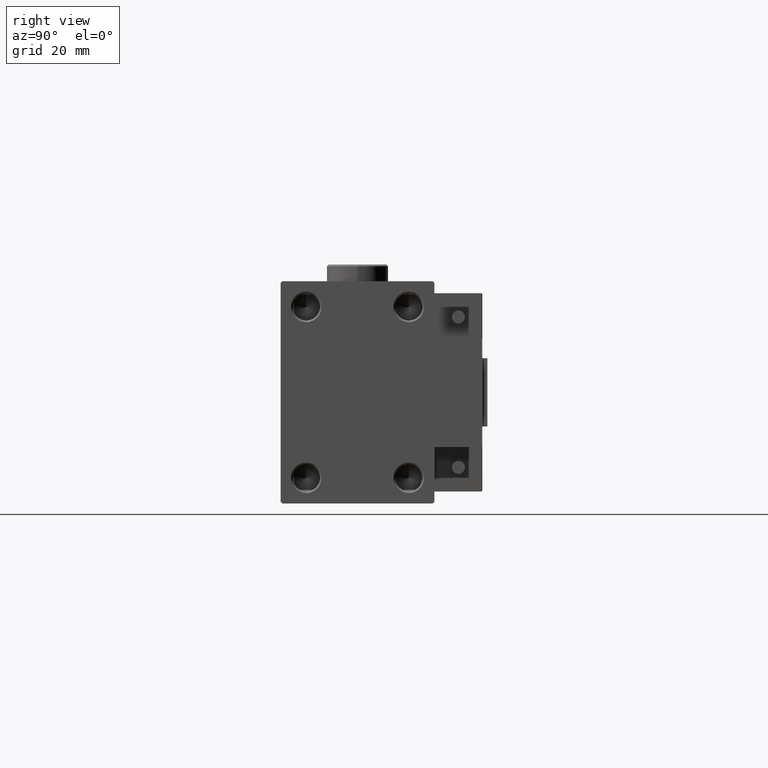
[diagram: clean part render]
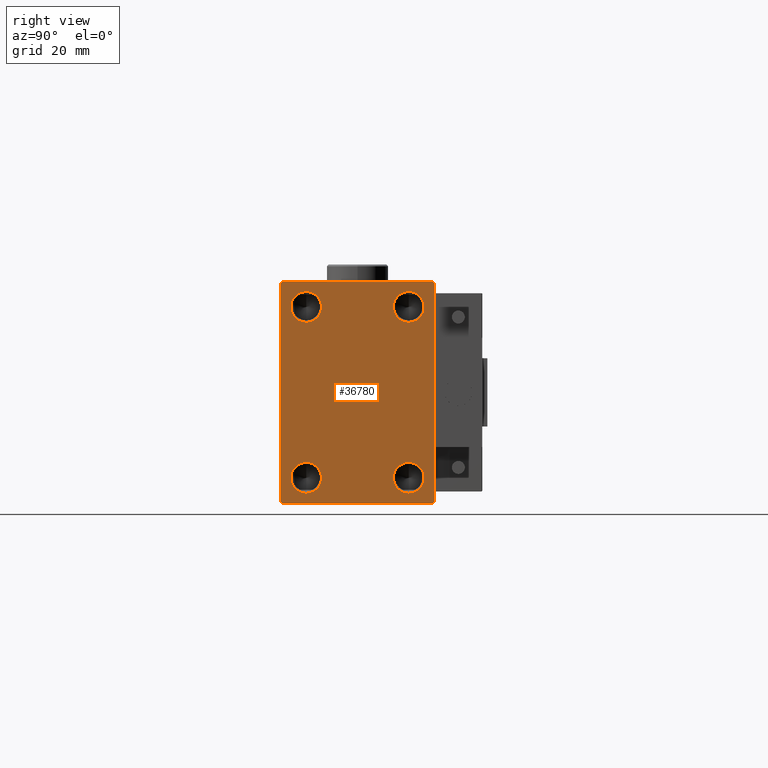
[diagram: same view with one face highlighted and labeled with its STEP entity id]
A machine part, right view. The second image highlights one B-rep face of the part: STEP entity #36780.
In plain terms, the highlighted planar face has unit normal (1, 0, 0).
Its self-contained STEP definition (entity closure, byte-faithful):
#361 = VECTOR ( 'NONE', #15699, 1000.000000000000114 ) ;
#390 = EDGE_CURVE ( 'NONE', #19330, #53029, #1608, .T. ) ;
#391 = CARTESIAN_POINT ( 'NONE',  ( 75.00000000000000000, -22.49999999999999289, -32.50000000000000711 ) ) ;
#492 = LINE ( 'NONE', #9712, #34011 ) ;
#602 = CARTESIAN_POINT ( 'NONE',  ( 75.00000000000000000, -15.00000000000000000, 29.49999999999998579 ) ) ;
#916 = CIRCLE ( 'NONE', #50083, 4.499999999999990230 ) ;
#1169 = FACE_OUTER_BOUND ( 'NONE', #13412, .T. ) ;
#1608 = CIRCLE ( 'NONE', #32893, 4.500000000000017764 ) ;
#2290 = LINE ( 'NONE', #44859, #361 ) ;
#2664 = VECTOR ( 'NONE', #12709, 1000.000000000000000 ) ;
#2684 = VERTEX_POINT ( 'NONE', #24225 ) ;
#2790 = CARTESIAN_POINT ( 'NONE',  ( 75.00000000000000000, -22.49999999999999289, 31.99999999999998579 ) ) ;
#3027 = ORIENTED_EDGE ( 'NONE', *, *, #45269, .T. ) ;
#3507 = DIRECTION ( 'NONE',  ( 1.000000000000000000, -0.000000000000000000, -0.000000000000000000 ) ) ;
#4743 = ORIENTED_EDGE ( 'NONE', *, *, #18627, .F. ) ;
#5506 = DIRECTION ( 'NONE',  ( 0.000000000000000000, 0.000000000000000000, -1.000000000000000000 ) ) ;
#6757 = CIRCLE ( 'NONE', #38046, 4.500000000000017764 ) ;
#7124 = CARTESIAN_POINT ( 'NONE',  ( 75.00000000000000000, 22.00000000000000000, 32.49999999999999289 ) ) ;
#7431 = CARTESIAN_POINT ( 'NONE',  ( 75.00000000000000000, -15.00000000000000000, -25.00000000000000000 ) ) ;
#7772 = VERTEX_POINT ( 'NONE', #7861 ) ;
#7838 = ORIENTED_EDGE ( 'NONE', *, *, #53928, .T. ) ;
#7861 = CARTESIAN_POINT ( 'NONE',  ( 75.00000000000000000, -22.49999999999999289, -32.00000000000001421 ) ) ;
#8219 = VECTOR ( 'NONE', #10863, 1000.000000000000000 ) ;
#8536 = DIRECTION ( 'NONE',  ( 0.000000000000000000, 0.000000000000000000, -1.000000000000000000 ) ) ;
#9560 = CARTESIAN_POINT ( 'NONE',  ( 75.00000000000000000, 0.000000000000000000, 0.000000000000000000 ) ) ;
#9712 = CARTESIAN_POINT ( 'NONE',  ( 75.00000000000000000, -22.49999999999999289, 32.49999999999998579 ) ) ;
#9832 = ORIENTED_EDGE ( 'NONE', *, *, #51158, .F. ) ;
#10160 = VERTEX_POINT ( 'NONE', #31434 ) ;
#10567 = CARTESIAN_POINT ( 'NONE',  ( 75.00000000000000000, 22.00000000000000711, -32.50000000000000711 ) ) ;
#10725 = ORIENTED_EDGE ( 'NONE', *, *, #40766, .T. ) ;
#10804 = EDGE_CURVE ( 'NONE', #32981, #10160, #16984, .T. ) ;
#10863 = DIRECTION ( 'NONE',  ( -0.000000000000000000, 0.7071067811865378028, 0.7071067811865573427 ) ) ;
#11098 = DIRECTION ( 'NONE',  ( 1.000000000000000000, -0.000000000000000000, -0.000000000000000000 ) ) ;
#11780 = LINE ( 'NONE', #16519, #25911 ) ;
#11822 = VERTEX_POINT ( 'NONE', #10567 ) ;
#12709 = DIRECTION ( 'NONE',  ( 0.000000000000000000, 1.000000000000000000, 0.000000000000000000 ) ) ;
#13326 = AXIS2_PLACEMENT_3D ( 'NONE', #9560, #30584, #13747 ) ;
#13412 = EDGE_LOOP ( 'NONE', ( #38812, #39162, #20581, #43471, #10725, #3027, #7838, #18796 ) ) ;
#13475 = PLANE ( 'NONE',  #13326 ) ;
#13626 = DIRECTION ( 'NONE',  ( 0.000000000000000000, 0.000000000000000000, -1.000000000000000000 ) ) ;
#13641 = LINE ( 'NONE', #31312, #37679 ) ;
#13721 = CARTESIAN_POINT ( 'NONE',  ( 75.00000000000000000, 22.50000000000000711, -32.00000000000000711 ) ) ;
#13747 = DIRECTION ( 'NONE',  ( 0.000000000000000000, 0.000000000000000000, -1.000000000000000000 ) ) ;
#14695 = CIRCLE ( 'NONE', #20976, 4.500000000000017764 ) ;
#15699 = DIRECTION ( 'NONE',  ( 0.000000000000000000, -0.7071067811865474617, -0.7071067811865474617 ) ) ;
#15889 = CARTESIAN_POINT ( 'NONE',  ( 75.00000000000000000, 22.50000000000000711, -32.50000000000000711 ) ) ;
#16519 = CARTESIAN_POINT ( 'NONE',  ( 75.00000000000000000, 27.24999999999969447, 27.25000000000044764 ) ) ;
#16857 = ORIENTED_EDGE ( 'NONE', *, *, #19822, .F. ) ;
#16984 = CIRCLE ( 'NONE', #24152, 4.499999999999990230 ) ;
#18321 = DIRECTION ( 'NONE',  ( 0.000000000000000000, 0.000000000000000000, -1.000000000000000000 ) ) ;
#18627 = EDGE_CURVE ( 'NONE', #35052, #23536, #51324, .T. ) ;
#18796 = ORIENTED_EDGE ( 'NONE', *, *, #37018, .T. ) ;
#18965 = EDGE_CURVE ( 'NONE', #23536, #35052, #22739, .T. ) ;
#18968 = DIRECTION ( 'NONE',  ( 0.000000000000000000, 0.000000000000000000, -1.000000000000000000 ) ) ;
#19323 = EDGE_CURVE ( 'NONE', #20362, #40078, #2290, .T. ) ;
#19330 = VERTEX_POINT ( 'NONE', #36181 ) ;
#19822 = EDGE_CURVE ( 'NONE', #20641, #34281, #14695, .T. ) ;
#20322 = DIRECTION ( 'NONE',  ( 1.000000000000000000, -0.000000000000000000, -0.000000000000000000 ) ) ;
#20362 = VERTEX_POINT ( 'NONE', #33911 ) ;
#20581 = ORIENTED_EDGE ( 'NONE', *, *, #38264, .T. ) ;
#20641 = VERTEX_POINT ( 'NONE', #20957 ) ;
#20861 = VERTEX_POINT ( 'NONE', #7124 ) ;
#20957 = CARTESIAN_POINT ( 'NONE',  ( 75.00000000000000000, 15.00000000000000178, -29.50000000000001421 ) ) ;
#20976 = AXIS2_PLACEMENT_3D ( 'NONE', #36587, #20322, #24823 ) ;
#21782 = DIRECTION ( 'NONE',  ( 0.000000000000000000, -1.000000000000000000, -1.541976423090495633E-16 ) ) ;
#21818 = AXIS2_PLACEMENT_3D ( 'NONE', #25923, #27587, #18321 ) ;
#22719 = FACE_BOUND ( 'NONE', #44962, .T. ) ;
#22723 = VECTOR ( 'NONE', #49787, 1000.000000000000000 ) ;
#22739 = CIRCLE ( 'NONE', #21818, 4.499999999999990230 ) ;
#23467 = CARTESIAN_POINT ( 'NONE',  ( 75.00000000000000000, 27.25000000000032330, -27.24999999999957012 ) ) ;
#23536 = VERTEX_POINT ( 'NONE', #33734 ) ;
#24152 = AXIS2_PLACEMENT_3D ( 'NONE', #48369, #39673, #13626 ) ;
#24225 = CARTESIAN_POINT ( 'NONE',  ( 75.00000000000000000, -22.00000000000000711, -32.50000000000000711 ) ) ;
#24236 = ORIENTED_EDGE ( 'NONE', *, *, #10804, .F. ) ;
#24823 = DIRECTION ( 'NONE',  ( 0.000000000000000000, 0.000000000000000000, -1.000000000000000000 ) ) ;
#25390 = CARTESIAN_POINT ( 'NONE',  ( 75.00000000000000000, -15.00000000000000000, -20.50000000000001776 ) ) ;
#25911 = VECTOR ( 'NONE', #45945, 1000.000000000000000 ) ;
#25923 = CARTESIAN_POINT ( 'NONE',  ( 75.00000000000000000, -15.00000000000000000, -25.00000000000000000 ) ) ;
#27141 = LINE ( 'NONE', #23467, #8219 ) ;
#27587 = DIRECTION ( 'NONE',  ( 1.000000000000000000, -0.000000000000000000, -0.000000000000000000 ) ) ;
#28202 = DIRECTION ( 'NONE',  ( 0.000000000000000000, 0.000000000000000000, -1.000000000000000000 ) ) ;
#28663 = EDGE_CURVE ( 'NONE', #34281, #20641, #6757, .T. ) ;
#30016 = DIRECTION ( 'NONE',  ( 0.000000000000000000, 0.000000000000000000, -1.000000000000000000 ) ) ;
#30378 = CARTESIAN_POINT ( 'NONE',  ( 75.00000000000000000, 15.00000000000000178, 20.49999999999998579 ) ) ;
#30584 = DIRECTION ( 'NONE',  ( 1.000000000000000000, 0.000000000000000000, 0.000000000000000000 ) ) ;
#31312 = CARTESIAN_POINT ( 'NONE',  ( 75.00000000000000000, 22.50000000000000000, 32.49999999999999289 ) ) ;
#31434 = CARTESIAN_POINT ( 'NONE',  ( 75.00000000000000000, -15.00000000000000000, 20.50000000000001776 ) ) ;
#31610 = CIRCLE ( 'NONE', #47698, 4.500000000000017764 ) ;
#32107 = VERTEX_POINT ( 'NONE', #13721 ) ;
#32713 = LINE ( 'NONE', #15889, #22723 ) ;
#32893 = AXIS2_PLACEMENT_3D ( 'NONE', #40254, #48668, #18968 ) ;
#32981 = VERTEX_POINT ( 'NONE', #602 ) ;
#33099 = EDGE_LOOP ( 'NONE', ( #4743, #43777 ) ) ;
#33210 = DIRECTION ( 'NONE',  ( -0.000000000000000000, 0.7071067811865426878, -0.7071067811865524577 ) ) ;
#33480 = ORIENTED_EDGE ( 'NONE', *, *, #38363, .F. ) ;
#33734 = CARTESIAN_POINT ( 'NONE',  ( 75.00000000000000000, -15.00000000000000000, -29.49999999999998579 ) ) ;
#33911 = CARTESIAN_POINT ( 'NONE',  ( 75.00000000000000000, -21.99999999999997868, 32.49999999999998579 ) ) ;
#33967 = VECTOR ( 'NONE', #33210, 1000.000000000000000 ) ;
#34011 = VECTOR ( 'NONE', #5506, 1000.000000000000000 ) ;
#34281 = VERTEX_POINT ( 'NONE', #54657 ) ;
#34499 = LINE ( 'NONE', #51586, #33967 ) ;
#35043 = FACE_BOUND ( 'NONE', #49596, .T. ) ;
#35052 = VERTEX_POINT ( 'NONE', #25390 ) ;
#36181 = CARTESIAN_POINT ( 'NONE',  ( 75.00000000000000000, 15.00000000000000178, 29.50000000000001421 ) ) ;
#36587 = CARTESIAN_POINT ( 'NONE',  ( 75.00000000000000000, 15.00000000000000178, -25.00000000000000000 ) ) ;
#36780 = ADVANCED_FACE ( 'NONE', ( #35043, #22719, #51858, #48490, #1169 ), #13475, .T. ) ;
#37018 = EDGE_CURVE ( 'NONE', #48413, #20861, #11780, .T. ) ;
#37571 = EDGE_CURVE ( 'NONE', #7772, #2684, #34499, .T. ) ;
#37640 = DIRECTION ( 'NONE',  ( 0.000000000000000000, 0.000000000000000000, -1.000000000000000000 ) ) ;
#37679 = VECTOR ( 'NONE', #21782, 1000.000000000000000 ) ;
#38046 = AXIS2_PLACEMENT_3D ( 'NONE', #43981, #39771, #30016 ) ;
#38264 = EDGE_CURVE ( 'NONE', #40078, #7772, #492, .T. ) ;
#38363 = EDGE_CURVE ( 'NONE', #10160, #32981, #916, .T. ) ;
#38731 = LINE ( 'NONE', #391, #2664 ) ;
#38812 = ORIENTED_EDGE ( 'NONE', *, *, #44202, .T. ) ;
#39089 = CARTESIAN_POINT ( 'NONE',  ( 75.00000000000000000, 22.50000000000000000, 32.00000000000000711 ) ) ;
#39162 = ORIENTED_EDGE ( 'NONE', *, *, #19323, .T. ) ;
#39673 = DIRECTION ( 'NONE',  ( 1.000000000000000000, -0.000000000000000000, -0.000000000000000000 ) ) ;
#39771 = DIRECTION ( 'NONE',  ( 1.000000000000000000, -0.000000000000000000, -0.000000000000000000 ) ) ;
#40078 = VERTEX_POINT ( 'NONE', #2790 ) ;
#40254 = CARTESIAN_POINT ( 'NONE',  ( 75.00000000000000000, 15.00000000000000178, 25.00000000000000000 ) ) ;
#40334 = EDGE_LOOP ( 'NONE', ( #50058, #16857 ) ) ;
#40766 = EDGE_CURVE ( 'NONE', #2684, #11822, #38731, .T. ) ;
#41466 = ORIENTED_EDGE ( 'NONE', *, *, #390, .F. ) ;
#42119 = CARTESIAN_POINT ( 'NONE',  ( 75.00000000000000000, 15.00000000000000178, 25.00000000000000000 ) ) ;
#43471 = ORIENTED_EDGE ( 'NONE', *, *, #37571, .T. ) ;
#43777 = ORIENTED_EDGE ( 'NONE', *, *, #18965, .F. ) ;
#43981 = CARTESIAN_POINT ( 'NONE',  ( 75.00000000000000000, 15.00000000000000178, -25.00000000000000000 ) ) ;
#44202 = EDGE_CURVE ( 'NONE', #20861, #20362, #13641, .T. ) ;
#44859 = CARTESIAN_POINT ( 'NONE',  ( 75.00000000000000000, -27.24999999999998934, 27.24999999999998934 ) ) ;
#44962 = EDGE_LOOP ( 'NONE', ( #24236, #33480 ) ) ;
#45269 = EDGE_CURVE ( 'NONE', #11822, #32107, #27141, .T. ) ;
#45945 = DIRECTION ( 'NONE',  ( -0.000000000000000000, -0.7071067811865573427, 0.7071067811865378028 ) ) ;
#46600 = DIRECTION ( 'NONE',  ( 1.000000000000000000, -0.000000000000000000, -0.000000000000000000 ) ) ;
#47698 = AXIS2_PLACEMENT_3D ( 'NONE', #42119, #46600, #37640 ) ;
#48369 = CARTESIAN_POINT ( 'NONE',  ( 75.00000000000000000, -15.00000000000000000, 25.00000000000000000 ) ) ;
#48413 = VERTEX_POINT ( 'NONE', #39089 ) ;
#48490 = FACE_BOUND ( 'NONE', #40334, .T. ) ;
#48668 = DIRECTION ( 'NONE',  ( 1.000000000000000000, -0.000000000000000000, -0.000000000000000000 ) ) ;
#49456 = CARTESIAN_POINT ( 'NONE',  ( 75.00000000000000000, -15.00000000000000000, 25.00000000000000000 ) ) ;
#49596 = EDGE_LOOP ( 'NONE', ( #41466, #9832 ) ) ;
#49787 = DIRECTION ( 'NONE',  ( 0.000000000000000000, -1.067522139062650425E-16, 1.000000000000000000 ) ) ;
#50058 = ORIENTED_EDGE ( 'NONE', *, *, #28663, .F. ) ;
#50083 = AXIS2_PLACEMENT_3D ( 'NONE', #49456, #11098, #28202 ) ;
#51158 = EDGE_CURVE ( 'NONE', #53029, #19330, #31610, .T. ) ;
#51324 = CIRCLE ( 'NONE', #52236, 4.499999999999990230 ) ;
#51586 = CARTESIAN_POINT ( 'NONE',  ( 75.00000000000000000, -27.25000000000015632, -27.24999999999977973 ) ) ;
#51858 = FACE_BOUND ( 'NONE', #33099, .T. ) ;
#52236 = AXIS2_PLACEMENT_3D ( 'NONE', #7431, #3507, #8536 ) ;
#53029 = VERTEX_POINT ( 'NONE', #30378 ) ;
#53928 = EDGE_CURVE ( 'NONE', #32107, #48413, #32713, .T. ) ;
#54657 = CARTESIAN_POINT ( 'NONE',  ( 75.00000000000000000, 15.00000000000000178, -20.49999999999998579 ) ) ;